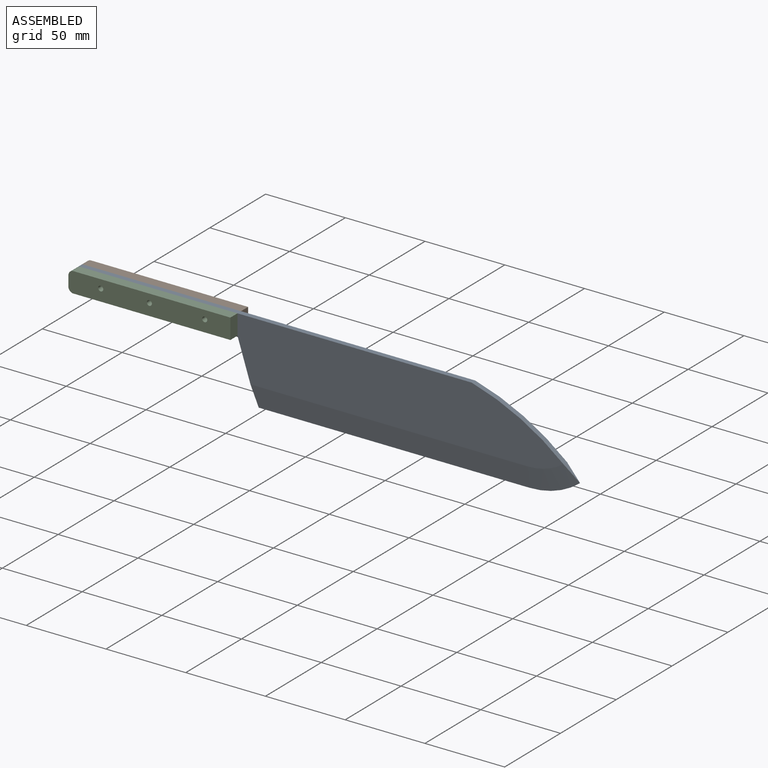
[diagram: assembled view]
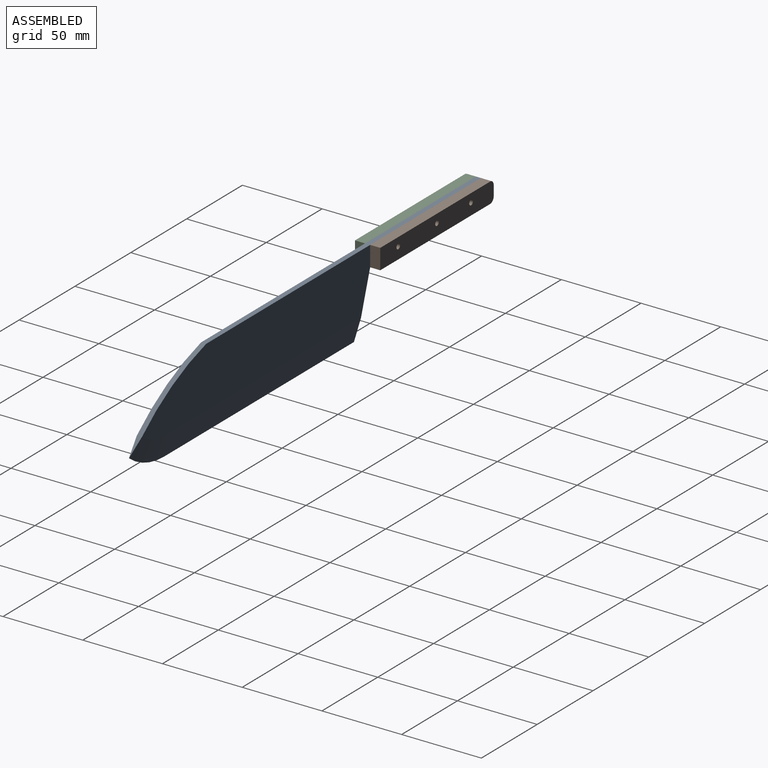
[diagram: assembled view, second angle]
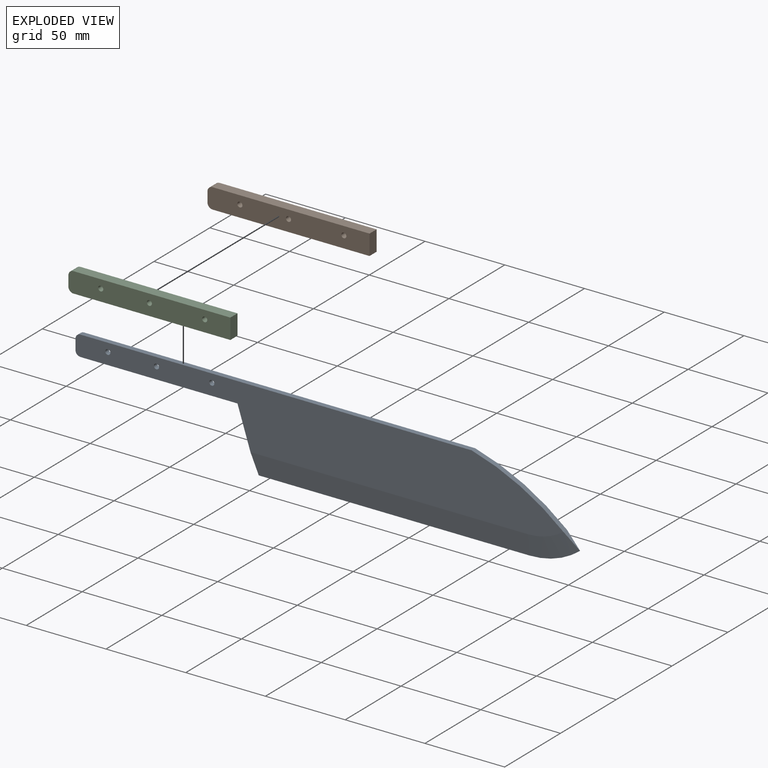
[diagram: exploded view]
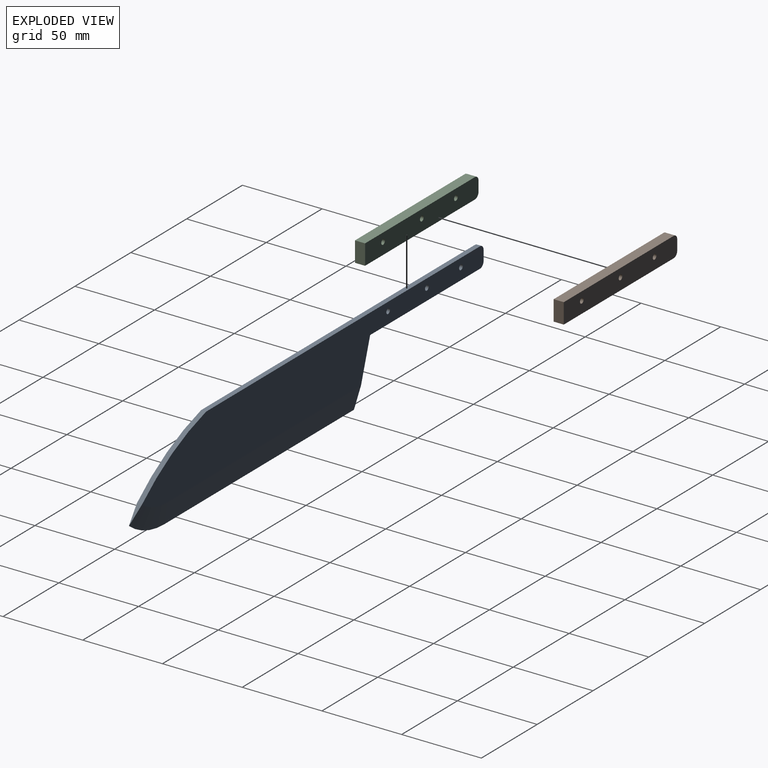
[diagram: exploded view, second angle]
ASSEMBLY  parts=3 mates=2
PART A: 16 faces, bbox 315.4x3.2x50.8 mm
  f0: plane 98.43x3.18mm, normal (0,0,-1), area 312.5mm2, adj f1,f6,f7,f8
  f1: plane 38.1x12.24mm, normal (-0.95,0,-0.31), area 105.9mm2, adj f0,f7,f8,f12,f14
  f2: cylinder r=147.32mm len=66.86mm, axis (0,1,0), area 229.4mm2, adj f3,f7,f8,f13,f15
  f3: plane 245.34x3.18mm, normal (0,0,1), area 779mm2, adj f2,f4,f7,f8
  f4: cylinder r=3.17mm len=3.18mm, axis (0,1,0), area 15.8mm2, adj f3,f5,f7,f8
  f5: plane 6.35x3.18mm, normal (-1,0,0), area 20.2mm2, adj f4,f6,f7,f8
  f6: cylinder r=3.17mm len=3.18mm, axis (0,1,0), area 15.8mm2, adj f0,f5,f7,f8
  f7: plane 306.05x38.1mm, normal (0,-1,0), area 8168.8mm2, adj f0,f1,f2,f3,f4,f5,f6,f9
  f8: plane 306.05x38.1mm, normal (0,1,0), area 8168.8mm2, adj f0,f1,f2,f3,f4,f5,f6,f9
  f9: cylinder r=1.59mm len=3.18mm, axis (0,1,0), area 31.7mm2, adj f7,f8
  f10: cylinder r=1.59mm len=3.18mm, axis (0,1,0), area 31.7mm2, adj f7,f8
  f11: cylinder r=1.59mm len=3.18mm, axis (0,1,0), area 31.7mm2, adj f7,f8
  f12: plane 173.91x12.7mm, normal (0,0.99,-0.12), area 2199.8mm2, adj f1,f8,f13,f14
  f13: cone r=50.8mm half-angle=82.9deg, axis (0,-1,0), area 370.9mm2, adj f2,f8,f12,f15
  f14: plane 173.91x12.7mm, normal (0,-0.99,-0.12), area 2199.8mm2, adj f1,f7,f12,f15
  f15: cone r=38.1mm half-angle=82.9deg, axis (0,1,0), area 370.9mm2, adj f2,f7,f13,f14
PART B: 11 faces, bbox 101.6x6.4x12.7 mm
  f0: plane 12.7x6.35mm, normal (1,0,0), area 80.6mm2, adj f1,f5,f6,f7
  f1: plane 98.43x6.35mm, normal (0,0,1), area 625mm2, adj f0,f2,f6,f7
  f2: cylinder r=3.17mm len=6.35mm, axis (0,1,0), area 31.7mm2, adj f1,f3,f6,f7
  f3: plane 6.35x6.35mm, normal (-1,0,0), area 40.3mm2, adj f2,f4,f6,f7
  f4: cylinder r=3.17mm len=6.35mm, axis (0,1,0), area 31.7mm2, adj f3,f5,f6,f7
  f5: plane 98.43x6.35mm, normal (0,0,-1), area 625mm2, adj f0,f4,f6,f7
  f6: plane 101.6x12.7mm, normal (0,-1,0), area 1262.2mm2, adj f0,f1,f2,f3,f4,f5,f8,f9
  f7: plane 101.6x12.7mm, normal (0,1,0), area 1262.2mm2, adj f0,f1,f2,f3,f4,f5,f8,f9
  f8: cylinder r=1.59mm len=6.35mm, axis (0,1,0), area 63.3mm2, adj f6,f7
  f9: cylinder r=1.59mm len=6.35mm, axis (0,1,0), area 63.3mm2, adj f6,f7
  f10: cylinder r=1.59mm len=6.35mm, axis (0,1,0), area 63.3mm2, adj f6,f7
PART C: same geometry as B
PLACE A t=(-213.09,11.04,124.74)mm
PLACE B t=(-219.9,17.39,158.84)mm
PLACE C t=(-219.9,7.86,158.84)mm
MATE fastened B.f10 <-> A.f9  axis (0,-1,0) through (-294.4,11.04,170.19)mm
MATE fastened C.f8 <-> A.f11  axis (0,1,0) through (-229.19,7.86,170.19)mm
